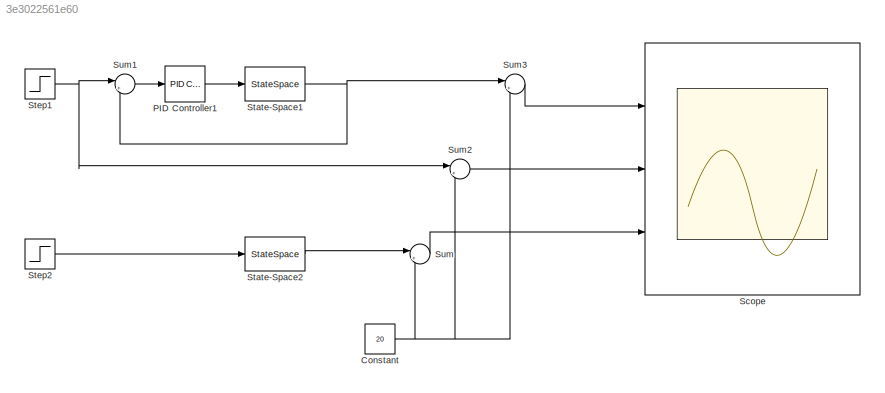
MODEL slx_3e3022561e60
KIND model
CONFIG AbsTol = auto
CONFIG FixedStep = auto
CONFIG MaxStep = 0.01
CONFIG MinStep = auto
CONFIG RelTol = 1e-4
CONFIG SampleTimeConstraint = Unconstrained
CONFIG Solver = VariableStepAuto
CONFIG SolverMode = Auto
CONFIG SolverName = VariableStepAuto
CONFIG StartTime = 0.0
CONFIG StopTime = 2000
BLOCK [Constant] Constant
  Value = 20
BLOCK [Reference] PID Controller1  REF=simulink/Continuous/PID Controller
  Ports = [1, 1]
  SourceBlock = simulink/Continuous/PID Controller
  SourceType = PID 1dof
BLOCK [Scope] Scope
  NumInputPorts = 3
  Ports = [3]
  ScopeSpecificationString = Simulink.scopes.TimeScopeBlockCfg('CurrentConfiguration', extmgr.ConfigurationSet(extmgr.Configuration('Core','General UI',true),extmgr.Configuration('Core','Source UI',true),extmgr.Configuration('Sources','WiredSimulink',true),extmgr.Configuration('Visuals','Time Domain',true,'SerializedDisplays',{struct('MinYLimReal','-13.27509','MaxYLimReal','119.2764','YLabelReal','','MinYLimMag','0.00000','Ma...<+1821ch>
BLOCK [StateSpace] State-Space1
  A = -0.007350741359020
  AbsoluteTolerance = 0
  C = 0.632320327666647
  D = 0
  Ports = [1, 1]
  X0 = 1
BLOCK [StateSpace] State-Space2
  A = -0.007350741359020
  AbsoluteTolerance = 0
  C = 0.632320327666647
  D = 0
  Ports = [1, 1]
  X0 = 1
BLOCK [Step] Step1
  After = 70
  SampleTime = 0
  Time = 50
BLOCK [Step] Step2
  SampleTime = 0
  Time = 50
BLOCK [Sum] Sum
  IconShape = round
  InputSameDT = off
  Inputs = |++
  OutDataTypeStr = Inherit: Inherit via internal rule
  Ports = [2, 1]
  SaturateOnIntegerOverflow = off
BLOCK [Sum] Sum1
  IconShape = round
  InputSameDT = off
  Inputs = |+-
  OutDataTypeStr = Inherit: Inherit via internal rule
  Ports = [2, 1]
  SaturateOnIntegerOverflow = off
BLOCK [Sum] Sum2
  IconShape = round
  InputSameDT = off
  Inputs = |++
  OutDataTypeStr = Inherit: Inherit via internal rule
  Ports = [2, 1]
  SaturateOnIntegerOverflow = off
BLOCK [Sum] Sum3
  IconShape = round
  InputSameDT = off
  Inputs = |++
  OutDataTypeStr = Inherit: Inherit via internal rule
  Ports = [2, 1]
  SaturateOnIntegerOverflow = off
NET Constant:1 -> Sum2:2, Sum3:2, Sum:2
LINE PID Controller1:1 -> State-Space1:1
NET State-Space1:1 -> Sum1:2, Sum3:1
LINE State-Space2:1 -> Sum:1
NET Step1:1 -> Sum1:1, Sum2:1
LINE Step2:1 -> State-Space2:1
LINE Sum1:1 -> PID Controller1:1
LINE Sum2:1 -> Scope:2
LINE Sum3:1 -> Scope:1
LINE Sum:1 -> Scope:3
note: NET lines group one-source signal fan-out (src -> all destinations, sorted); 1:1 wires keep LINE
